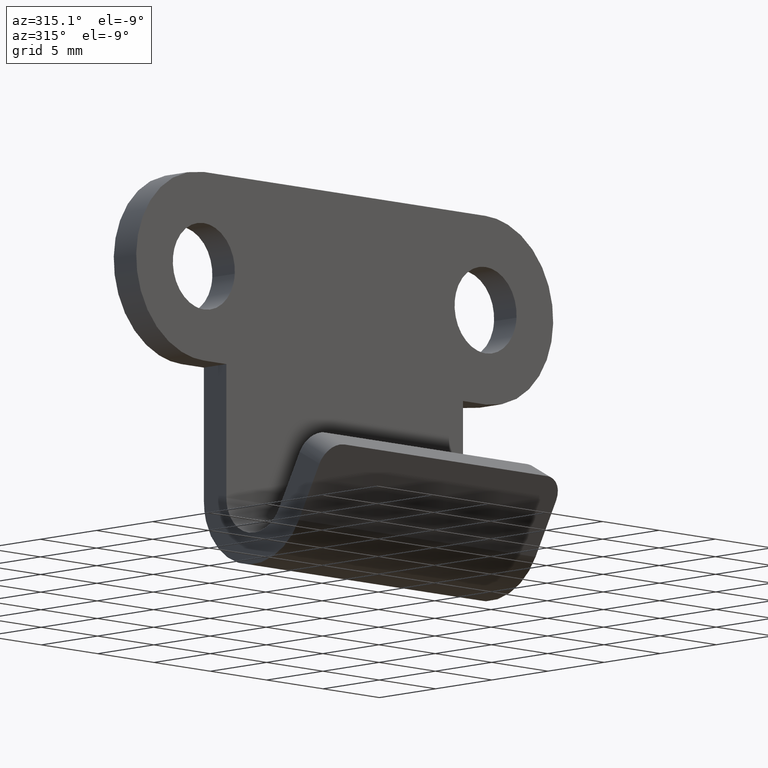
[diagram: clean part render]
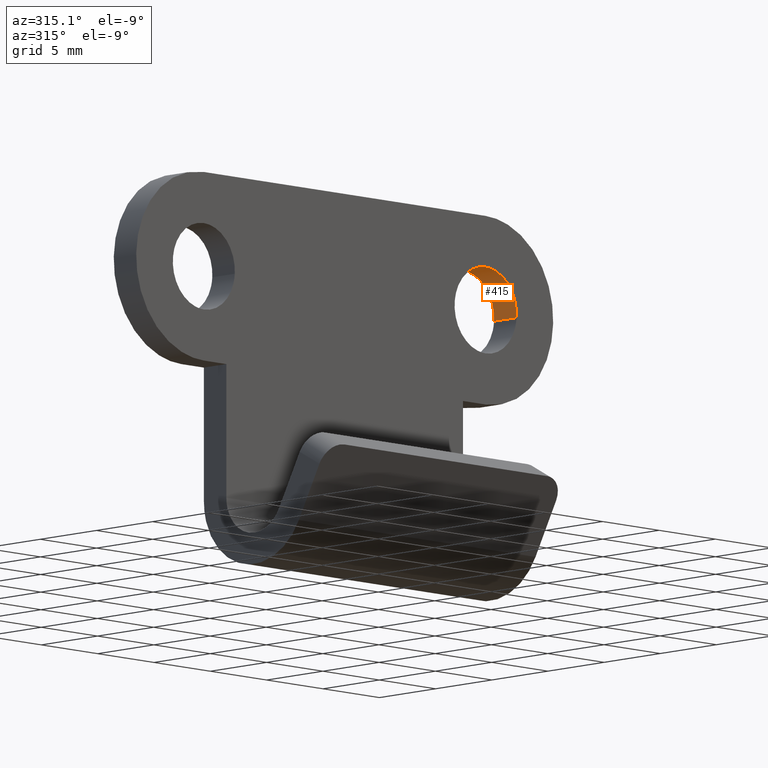
[diagram: same view with one face highlighted and labeled with its STEP entity id]
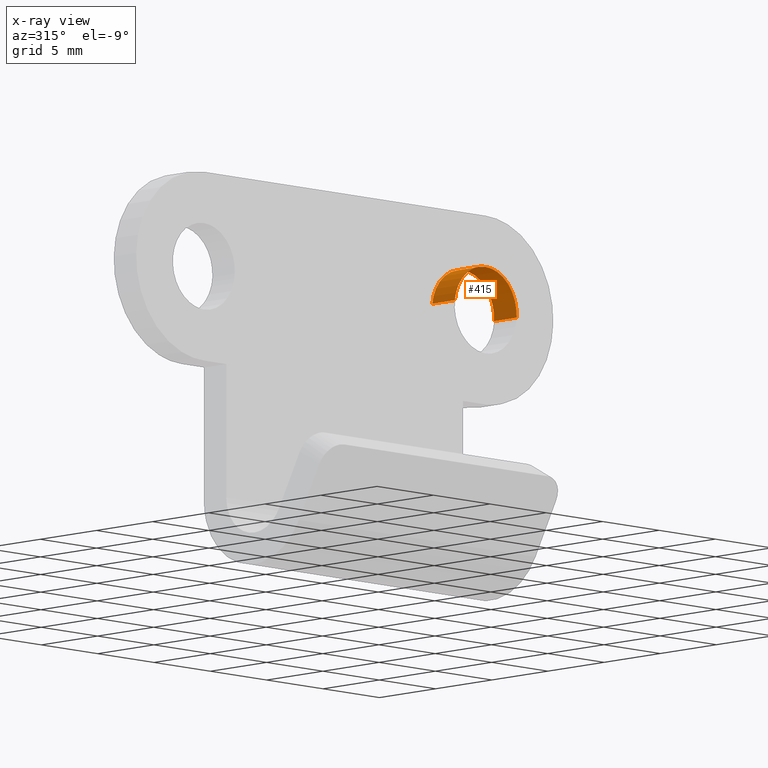
[diagram: x-ray of the same camera — body ghosted, the highlighted face saturated]
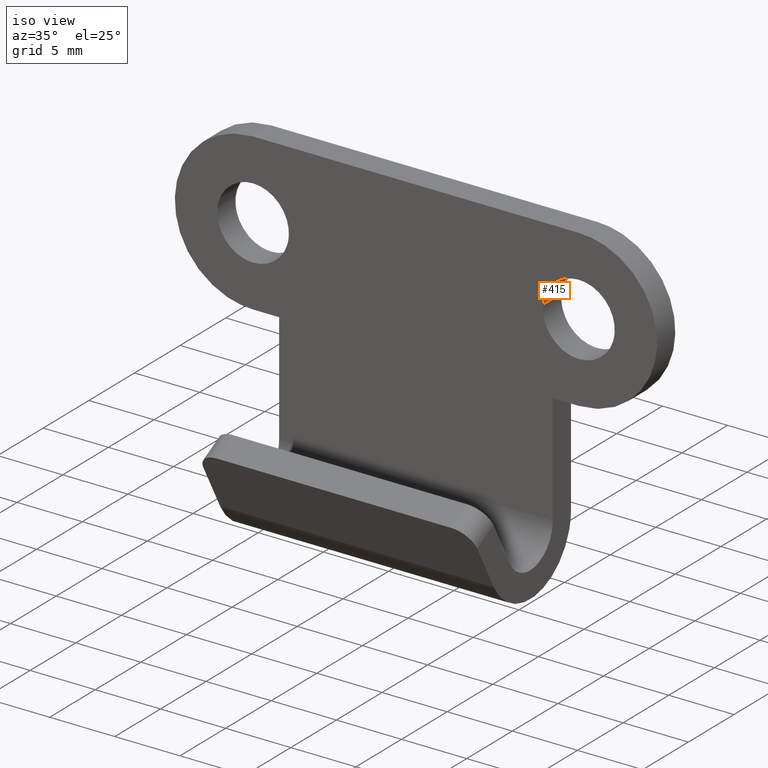
[diagram: same view with one face highlighted and labeled with its STEP entity id]
A machine part, auxiliary view. The second image highlights one B-rep face of the part: STEP entity #415.
The next image is the same camera in x-ray: the body ghosted, the highlighted face saturated — about 0% of this face is hidden behind the body in this view.
A second angle (iso view) of the same face is appended — the face is thin or edge-on in the first view.
In plain terms, the highlighted face is a freeform B-spline surface patch.
Its self-contained STEP definition (entity closure, byte-faithful):
#252=CARTESIAN_POINT('',(9.769223802503969,7.098571E-017,-5.675405854659825));
#253=VERTEX_POINT('',#252);
#271=CARTESIAN_POINT('',(9.769223802503971,-2.0,-5.675405854659825));
#272=VERTEX_POINT('',#271);
#273=CARTESIAN_POINT('',(9.769223802503969,7.098571E-017,-5.675405854659825));
#274=CARTESIAN_POINT('',(9.769223802503971,-2.0,-5.675405854659825));
#275=QUASI_UNIFORM_CURVE('',1,(#273,#274),.UNSPECIFIED.,.F.,.U.);
#276=EDGE_CURVE('',#253,#272,#275,.T.);
#295=CARTESIAN_POINT('',(15.244870695656870,-2.0,-6.167883483774260));
#296=VERTEX_POINT('',#295);
#310=CARTESIAN_POINT('',(15.244870695656870,6.938894E-017,-6.167883483774260));
#311=VERTEX_POINT('',#310);
#312=CARTESIAN_POINT('',(15.244870695656870,6.938894E-017,-6.167883483774260));
#313=CARTESIAN_POINT('',(15.244870695656870,-2.0,-6.167883483774260));
#314=QUASI_UNIFORM_CURVE('',1,(#312,#313),.UNSPECIFIED.,.F.,.U.);
#315=EDGE_CURVE('',#311,#296,#314,.T.);
#333=CARTESIAN_POINT('',(15.244870695660129,0.050000000000000,-6.167883483720857));
#334=CARTESIAN_POINT('',(15.412754179380990,0.050000000000000,-3.423012788060723));
#335=CARTESIAN_POINT('',(12.667883483720860,0.050000000000000,-3.255129304339866));
#336=CARTESIAN_POINT('',(10.075755400191376,0.050000000000000,-3.096587958985549));
#337=CARTESIAN_POINT('',(9.769223802499919,0.050000000000000,-5.675405854693914));
#338=CARTESIAN_POINT('',(15.244870695660129,-2.051250000000000,-6.167883483720857));
#339=CARTESIAN_POINT('',(15.412754179380990,-2.051250000000001,-3.423012788060723));
#340=CARTESIAN_POINT('',(12.667883483720860,-2.051250000000000,-3.255129304339866));
#341=CARTESIAN_POINT('',(10.075755400191376,-2.051250000000001,-3.096587958985549));
#342=CARTESIAN_POINT('',(9.769223802499919,-2.051250000000001,-5.675405854693914));
#350=(BOUNDED_SURFACE()B_SPLINE_SURFACE(2,1,((#333,#338),(#334,#339),(#335,#340),(#336,#341),(#337,#342)),.UNSPECIFIED.,.F.,.F.,.U.)B_SPLINE_SURFACE_WITH_KNOTS((3,2,3),(2,2),(0.0,4.556349186104045,8.930444404763927),(0.0,2.101250000000000),.UNSPECIFIED.)GEOMETRIC_REPRESENTATION_ITEM()RATIONAL_B_SPLINE_SURFACE(((1.0,1.0),(0.707106781186548,0.707106781186548),(1.0,1.0),(0.718822509939086,0.718822509939086),(0.977505800795127,0.977505800795127)))REPRESENTATION_ITEM('')SURFACE());
#351=CARTESIAN_POINT('',(12.500000000000000,0.0,-3.250000000000000));
#352=VERTEX_POINT('',#351);
#353=CARTESIAN_POINT('',(12.500000000000000,0.0,-3.250000000000000));
#354=CARTESIAN_POINT('',(10.057520053695150,0.0,-3.250000000000001));
#355=CARTESIAN_POINT('',(9.769223802503969,7.098571E-017,-5.675405854659825));
#363=(BOUNDED_CURVE()B_SPLINE_CURVE(2,(#353,#354,#355),.UNSPECIFIED.,.F.,.U.)B_SPLINE_CURVE_WITH_KNOTS((3,3),(0.0,0.229562473511425),.UNSPECIFIED.)CURVE()GEOMETRIC_REPRESENTATION_ITEM()RATIONAL_B_SPLINE_CURVE((1.0,0.731050832857843,0.956026754179616))REPRESENTATION_ITEM(''));
#364=EDGE_CURVE('',#352,#253,#363,.T.);
#365=ORIENTED_EDGE('',*,*,#364,.F.);
#366=CARTESIAN_POINT('',(15.244870695656873,6.938894E-017,-6.167883483774260));
#367=CARTESIAN_POINT('',(15.250000000000004,0.0,-6.084020099124673));
#368=CARTESIAN_POINT('',(15.250000000000000,0.0,-6.0));
#369=CARTESIAN_POINT('',(15.249999999999998,0.0,-3.250000000000000));
#370=CARTESIAN_POINT('',(12.500000000000000,0.0,-3.250000000000000));
#378=(BOUNDED_CURVE()B_SPLINE_CURVE(2,(#366,#367,#368,#369,#370),.UNSPECIFIED.,.F.,.U.)B_SPLINE_CURVE_WITH_KNOTS((3,2,3),(0.739332962235254,0.750000000000000,1.0),.UNSPECIFIED.)CURVE()GEOMETRIC_REPRESENTATION_ITEM()RATIONAL_B_SPLINE_CURVE((0.976072041658812,0.987502787895516,1.0,0.707106781186548,1.0))REPRESENTATION_ITEM(''));
#379=EDGE_CURVE('',#311,#352,#378,.T.);
#380=ORIENTED_EDGE('',*,*,#379,.F.);
#381=ORIENTED_EDGE('',*,*,#315,.T.);
#382=CARTESIAN_POINT('',(12.500000000000000,-2.0,-3.250000000000000));
#383=VERTEX_POINT('',#382);
#384=CARTESIAN_POINT('',(15.244870695656873,-2.000000000000000,-6.167883483774260));
#385=CARTESIAN_POINT('',(15.250000000000004,-2.000000000000000,-6.084020099124673));
#386=CARTESIAN_POINT('',(15.250000000000000,-2.0,-6.0));
#387=CARTESIAN_POINT('',(15.249999999999998,-2.000000000000000,-3.250000000000000));
#388=CARTESIAN_POINT('',(12.500000000000000,-2.0,-3.250000000000000));
#396=(BOUNDED_CURVE()B_SPLINE_CURVE(2,(#384,#385,#386,#387,#388),.UNSPECIFIED.,.F.,.U.)B_SPLINE_CURVE_WITH_KNOTS((3,2,3),(0.739332962235254,0.750000000000000,1.0),.UNSPECIFIED.)CURVE()GEOMETRIC_REPRESENTATION_ITEM()RATIONAL_B_SPLINE_CURVE((0.976072041658812,0.987502787895516,1.0,0.707106781186548,1.0))REPRESENTATION_ITEM(''));
#397=EDGE_CURVE('',#296,#383,#396,.T.);
#398=ORIENTED_EDGE('',*,*,#397,.T.);
#399=CARTESIAN_POINT('',(12.500000000000000,-2.0,-3.250000000000000));
#400=CARTESIAN_POINT('',(10.057520053695150,-2.0,-3.250000000000001));
#401=CARTESIAN_POINT('',(9.769223802503971,-2.000000000000000,-5.675405854659825));
#409=(BOUNDED_CURVE()B_SPLINE_CURVE(2,(#399,#400,#401),.UNSPECIFIED.,.F.,.U.)B_SPLINE_CURVE_WITH_KNOTS((3,3),(0.0,0.229562473511425),.UNSPECIFIED.)CURVE()GEOMETRIC_REPRESENTATION_ITEM()RATIONAL_B_SPLINE_CURVE((1.0,0.731050832857843,0.956026754179616))REPRESENTATION_ITEM(''));
#410=EDGE_CURVE('',#383,#272,#409,.T.);
#411=ORIENTED_EDGE('',*,*,#410,.T.);
#412=ORIENTED_EDGE('',*,*,#276,.F.);
#413=EDGE_LOOP('',(#365,#380,#381,#398,#411,#412));
#414=FACE_OUTER_BOUND('',#413,.T.);
#415=ADVANCED_FACE('',(#414),#350,.F.);